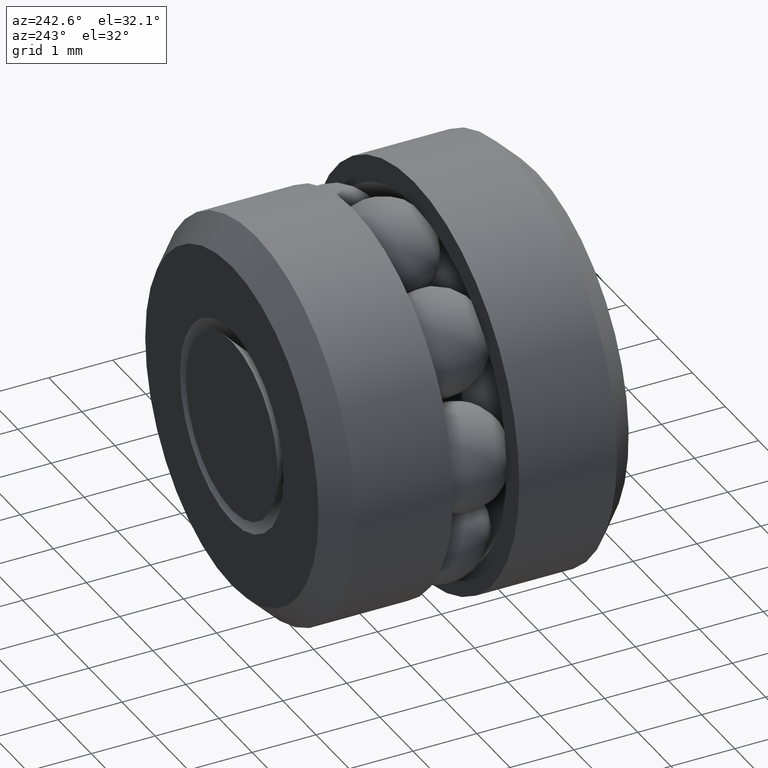
[diagram: clean part render]
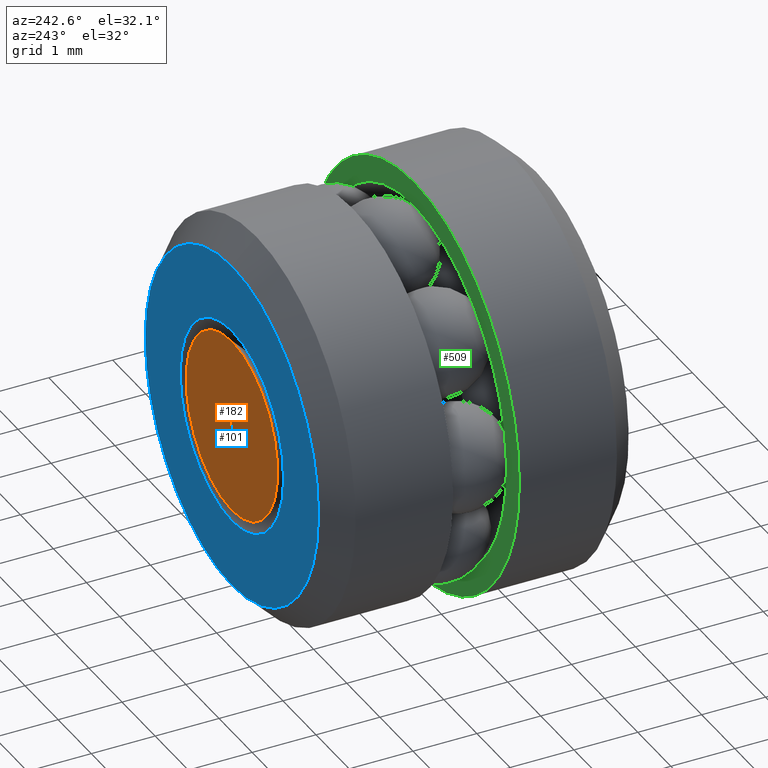
[diagram: same view with three faces highlighted in distinct colors, each labeled with its STEP entity id]
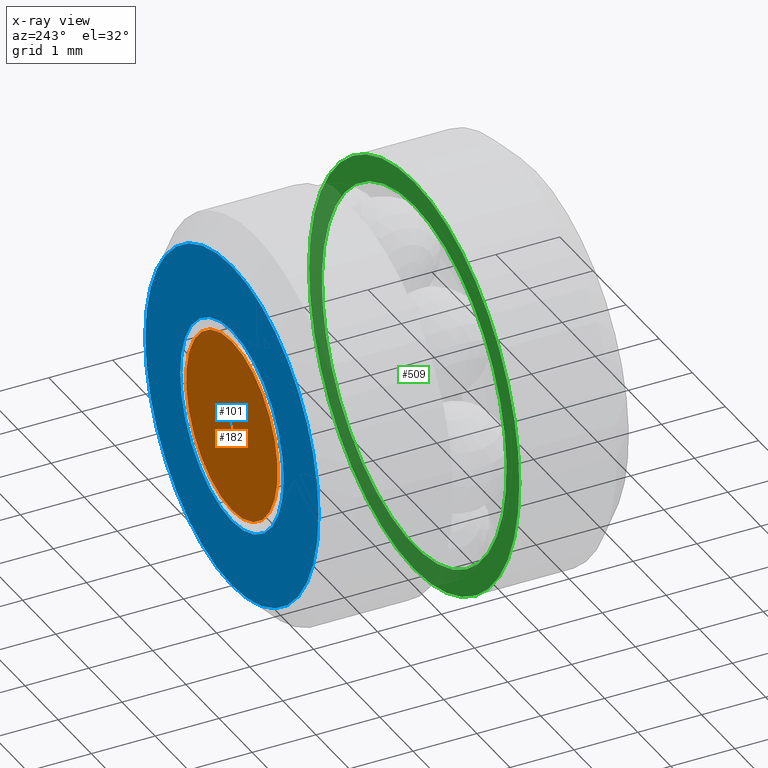
[diagram: x-ray of the same camera — body ghosted, the three highlighted faces saturated]
A machine part, auxiliary view with three faces highlighted in distinct colors.
The next image is the same camera in x-ray (body ghosted, the three faces saturated) — at least one of them is partly hidden behind the body in this view.
Their STEP definitions:

[orange] entity #182 — the highlighted planar face has unit normal (-0, 1, 0).
#57 = DIRECTION ( 'NONE',  ( 0.0000000000000000000, 0.0000000000000000000, 1.000000000000000000 ) ) ;
#64 = EDGE_CURVE ( 'NONE', #69, #69, #544, .T. ) ;
#69 = VERTEX_POINT ( 'NONE', #243 ) ;
#79 = ORIENTED_EDGE ( 'NONE', *, *, #64, .T. ) ;
#111 = FACE_OUTER_BOUND ( 'NONE', #197, .T. ) ;
#136 = AXIS2_PLACEMENT_3D ( 'NONE', #448, #278, #497 ) ;
#161 = CARTESIAN_POINT ( 'NONE',  ( 0.0000000000000000000, 0.1875000000000001100, 0.0000000000000000000 ) ) ;
#182 = ADVANCED_FACE ( 'NONE', ( #111 ), #311, .T. ) ;
#197 = EDGE_LOOP ( 'NONE', ( #79 ) ) ;
#231 = AXIS2_PLACEMENT_3D ( 'NONE', #161, #541, #57 ) ;
#243 = CARTESIAN_POINT ( 'NONE',  ( 0.0000000000000000000, 0.1875000000000001100, 0.05443749999999976400 ) ) ;
#278 = DIRECTION ( 'NONE',  ( -0.0000000000000000000, 1.000000000000000000, 0.0000000000000000000 ) ) ;
#311 = PLANE ( 'NONE',  #136 ) ;
#448 = CARTESIAN_POINT ( 'NONE',  ( 0.0000000000000000000, 0.1875000000000001100, 0.0000000000000000000 ) ) ;
#497 = DIRECTION ( 'NONE',  ( 0.0000000000000000000, 0.0000000000000000000, 1.000000000000000000 ) ) ;
#541 = DIRECTION ( 'NONE',  ( -0.0000000000000000000, 1.000000000000000000, -0.0000000000000000000 ) ) ;
#544 = CIRCLE ( 'NONE', #231, 0.05443749999999976400 ) ;

[blue] entity #101 — the highlighted planar face has unit normal (-0, 1, 0).
#34 = DIRECTION ( 'NONE',  ( 0.0000000000000000000, 0.0000000000000000000, 1.000000000000000000 ) ) ;
#88 = ORIENTED_EDGE ( 'NONE', *, *, #259, .F. ) ;
#101 = ADVANCED_FACE ( 'NONE', ( #205, #192 ), #241, .T. ) ;
#108 = DIRECTION ( 'NONE',  ( 0.0000000000000000000, 0.0000000000000000000, 1.000000000000000000 ) ) ;
#176 = CARTESIAN_POINT ( 'NONE',  ( 0.0000000000000000000, 0.1874999999999995800, 0.1030000000000002000 ) ) ;
#192 = FACE_BOUND ( 'NONE', #223, .T. ) ;
#205 = FACE_OUTER_BOUND ( 'NONE', #266, .T. ) ;
#223 = EDGE_LOOP ( 'NONE', ( #88 ) ) ;
#227 = DIRECTION ( 'NONE',  ( -0.0000000000000000000, 1.000000000000000000, -0.0000000000000000000 ) ) ;
#240 = AXIS2_PLACEMENT_3D ( 'NONE', #399, #555, #108 ) ;
#241 = PLANE ( 'NONE',  #240 ) ;
#253 = AXIS2_PLACEMENT_3D ( 'NONE', #305, #227, #526 ) ;
#259 = EDGE_CURVE ( 'NONE', #435, #435, #467, .T. ) ;
#266 = EDGE_LOOP ( 'NONE', ( #425 ) ) ;
#287 = CIRCLE ( 'NONE', #465, 0.1030000000000002000 ) ;
#290 = DIRECTION ( 'NONE',  ( -0.0000000000000000000, 1.000000000000000000, -0.0000000000000000000 ) ) ;
#305 = CARTESIAN_POINT ( 'NONE',  ( 0.0000000000000000000, 0.1875000000000001100, 0.0000000000000000000 ) ) ;
#372 = VERTEX_POINT ( 'NONE', #176 ) ;
#374 = EDGE_CURVE ( 'NONE', #372, #372, #287, .T. ) ;
#382 = CARTESIAN_POINT ( 'NONE',  ( 0.0000000000000000000, 0.1875000000000001100, 0.06150856781186511000 ) ) ;
#399 = CARTESIAN_POINT ( 'NONE',  ( -0.06150856781186511000, 0.1874999999999998300, 0.0000000000000000000 ) ) ;
#425 = ORIENTED_EDGE ( 'NONE', *, *, #374, .T. ) ;
#435 = VERTEX_POINT ( 'NONE', #382 ) ;
#465 = AXIS2_PLACEMENT_3D ( 'NONE', #556, #290, #34 ) ;
#467 = CIRCLE ( 'NONE', #253, 0.06150856781186511000 ) ;
#526 = DIRECTION ( 'NONE',  ( 0.0000000000000000000, 0.0000000000000000000, 1.000000000000000000 ) ) ;
#555 = DIRECTION ( 'NONE',  ( -0.0000000000000000000, 1.000000000000000000, 0.0000000000000000000 ) ) ;
#556 = CARTESIAN_POINT ( 'NONE',  ( 0.0000000000000000000, 0.1874999999999995800, 0.0000000000000000000 ) ) ;

[green] entity #509 — the highlighted planar face has unit normal (-0, 1, 0).
#11 = VERTEX_POINT ( 'NONE', #17 ) ;
#17 = CARTESIAN_POINT ( 'NONE',  ( 0.0000000000000000000, 0.07515000000000014700, 0.1097999999999998800 ) ) ;
#27 = FACE_OUTER_BOUND ( 'NONE', #410, .T. ) ;
#39 = DIRECTION ( 'NONE',  ( -0.0000000000000000000, 1.000000000000000000, 0.0000000000000000000 ) ) ;
#83 = ORIENTED_EDGE ( 'NONE', *, *, #210, .T. ) ;
#85 = AXIS2_PLACEMENT_3D ( 'NONE', #529, #39, #299 ) ;
#106 = AXIS2_PLACEMENT_3D ( 'NONE', #196, #453, #358 ) ;
#123 = AXIS2_PLACEMENT_3D ( 'NONE', #500, #246, #411 ) ;
#196 = CARTESIAN_POINT ( 'NONE',  ( 0.0000000000000000000, 0.07515000000000014700, 0.0000000000000000000 ) ) ;
#207 = EDGE_CURVE ( 'NONE', #11, #11, #416, .T. ) ;
#210 = EDGE_CURVE ( 'NONE', #294, #294, #393, .T. ) ;
#246 = DIRECTION ( 'NONE',  ( -0.0000000000000000000, 1.000000000000000000, -0.0000000000000000000 ) ) ;
#276 = CARTESIAN_POINT ( 'NONE',  ( 0.0000000000000000000, 0.07515000000000014700, 0.1250000000000000300 ) ) ;
#294 = VERTEX_POINT ( 'NONE', #276 ) ;
#299 = DIRECTION ( 'NONE',  ( 0.0000000000000000000, 0.0000000000000000000, 1.000000000000000000 ) ) ;
#303 = ORIENTED_EDGE ( 'NONE', *, *, #207, .F. ) ;
#358 = DIRECTION ( 'NONE',  ( 0.0000000000000000000, 0.0000000000000000000, 1.000000000000000000 ) ) ;
#391 = PLANE ( 'NONE',  #85 ) ;
#393 = CIRCLE ( 'NONE', #123, 0.1250000000000000300 ) ;
#410 = EDGE_LOOP ( 'NONE', ( #83 ) ) ;
#411 = DIRECTION ( 'NONE',  ( 0.0000000000000000000, 0.0000000000000000000, 1.000000000000000000 ) ) ;
#416 = CIRCLE ( 'NONE', #106, 0.1097999999999998800 ) ;
#453 = DIRECTION ( 'NONE',  ( -0.0000000000000000000, 1.000000000000000000, -0.0000000000000000000 ) ) ;
#481 = FACE_BOUND ( 'NONE', #557, .T. ) ;
#500 = CARTESIAN_POINT ( 'NONE',  ( 0.0000000000000000000, 0.07515000000000014700, 0.0000000000000000000 ) ) ;
#509 = ADVANCED_FACE ( 'NONE', ( #27, #481 ), #391, .T. ) ;
#529 = CARTESIAN_POINT ( 'NONE',  ( -0.1250000000000000300, 0.07515000000000014700, 0.0000000000000000000 ) ) ;
#557 = EDGE_LOOP ( 'NONE', ( #303 ) ) ;